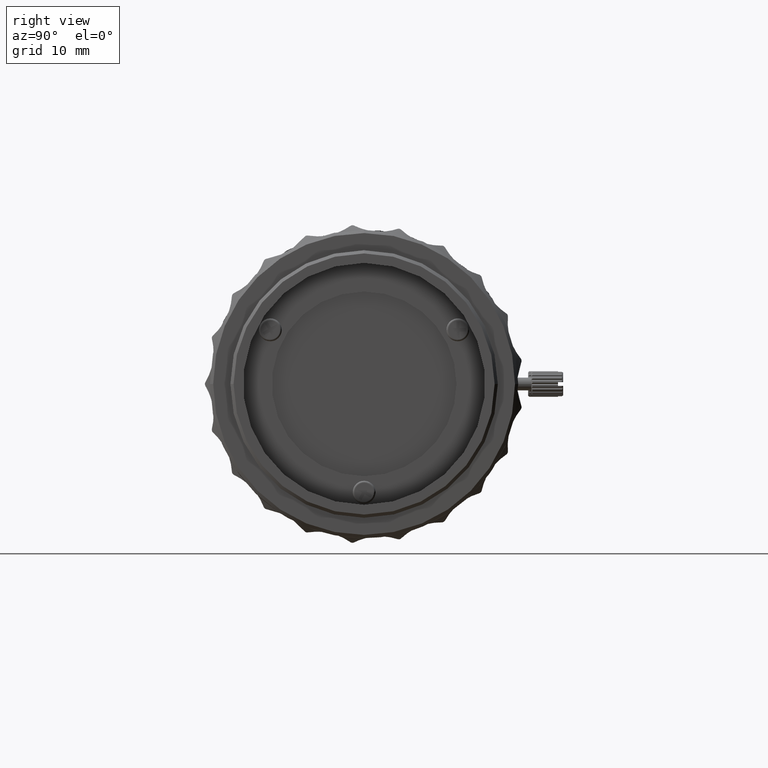
[diagram: clean part render]
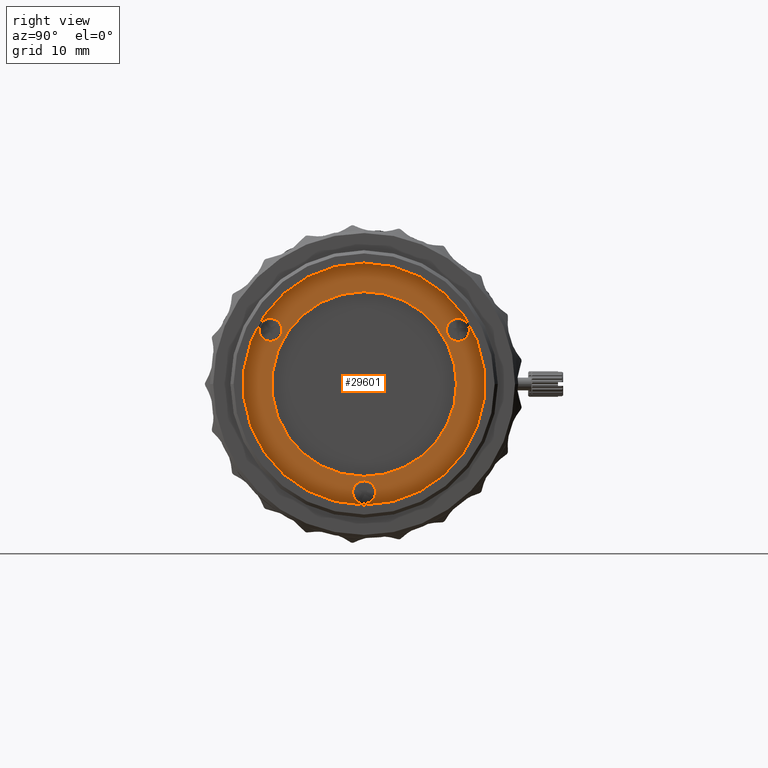
[diagram: same view with one face highlighted and labeled with its STEP entity id]
A machine part, right view. The second image highlights one B-rep face of the part: STEP entity #29601.
In plain terms, the highlighted planar face has unit normal (1, 0, 0).
Its self-contained STEP definition (entity closure, byte-faithful):
#645 = AXIS2_PLACEMENT_3D ( 'NONE', #67827, #20935, #40843 ) ;
#1491 = DIRECTION ( 'NONE',  ( 1.000000000000000000, 0.000000000000000000, 0.000000000000000000 ) ) ;
#2446 = VERTEX_POINT ( 'NONE', #39862 ) ;
#3119 = CIRCLE ( 'NONE', #5936, 1.799999999997940137 ) ;
#5640 = ORIENTED_EDGE ( 'NONE', *, *, #41194, .F. ) ;
#5758 = DIRECTION ( 'NONE',  ( 1.000000000000000000, 0.000000000000000000, 0.000000000000000000 ) ) ;
#5916 = EDGE_CURVE ( 'NONE', #37159, #42814, #18435, .T. ) ;
#5936 = AXIS2_PLACEMENT_3D ( 'NONE', #62930, #67788, #27519 ) ;
#6425 = ORIENTED_EDGE ( 'NONE', *, *, #31726, .F. ) ;
#6551 = CARTESIAN_POINT ( 'NONE',  ( 70.84600000000000364, 16.52243186433999966, 8.500000000000000000 ) ) ;
#7206 = FACE_BOUND ( 'NONE', #81527, .T. ) ;
#7243 = DIRECTION ( 'NONE',  ( 0.000000000000000000, -0.5000000000000167644, 0.8660254037844289376 ) ) ;
#9133 = EDGE_CURVE ( 'NONE', #2446, #22772, #37895, .T. ) ;
#9222 = VERTEX_POINT ( 'NONE', #6551 ) ;
#10450 = AXIS2_PLACEMENT_3D ( 'NONE', #87170, #5758, #26554 ) ;
#10662 = ORIENTED_EDGE ( 'NONE', *, *, #48024, .F. ) ;
#13706 = ORIENTED_EDGE ( 'NONE', *, *, #16368, .F. ) ;
#13896 = DIRECTION ( 'NONE',  ( 1.000000000000000000, 0.000000000000000000, 0.000000000000000000 ) ) ;
#14213 = VERTEX_POINT ( 'NONE', #33267 ) ;
#14341 = DIRECTION ( 'NONE',  ( 1.000000000000000000, 0.000000000000000000, 0.000000000000000000 ) ) ;
#14371 = CARTESIAN_POINT ( 'NONE',  ( 70.84600000000000364, 0.000000000000000000, 19.00000000000000000 ) ) ;
#14759 = CARTESIAN_POINT ( 'NONE',  ( 70.84600000000000364, 0.000000000000000000, 0.000000000000000000 ) ) ;
#15292 = DIRECTION ( 'NONE',  ( 0.000000000000000000, -1.000000000000000000, 0.000000000000000000 ) ) ;
#16368 = EDGE_CURVE ( 'NONE', #22772, #9222, #51496, .T. ) ;
#18435 = CIRCLE ( 'NONE', #48141, 1.799999999999939204 ) ;
#18628 = DIRECTION ( 'NONE',  ( 1.000000000000000000, 0.000000000000000000, 0.000000000000000000 ) ) ;
#19202 = ORIENTED_EDGE ( 'NONE', *, *, #50293, .F. ) ;
#19507 = DIRECTION ( 'NONE',  ( 1.000000000000000000, 0.000000000000000000, 0.000000000000000000 ) ) ;
#19648 = CARTESIAN_POINT ( 'NONE',  ( 70.84600000000000364, 0.000000000000000000, 0.000000000000000000 ) ) ;
#20935 = DIRECTION ( 'NONE',  ( 1.000000000000000000, 0.000000000000000000, 0.000000000000000000 ) ) ;
#22772 = VERTEX_POINT ( 'NONE', #38346 ) ;
#23639 = AXIS2_PLACEMENT_3D ( 'NONE', #70584, #69706, #30727 ) ;
#24595 = DIRECTION ( 'NONE',  ( 0.000000000000000000, -0.5000000000000169864, -0.8660254037844288266 ) ) ;
#25823 = DIRECTION ( 'NONE',  ( 0.000000000000000000, 0.000000000000000000, 1.000000000000000000 ) ) ;
#25898 = AXIS2_PLACEMENT_3D ( 'NONE', #75856, #1491, #28944 ) ;
#25926 = ORIENTED_EDGE ( 'NONE', *, *, #41093, .F. ) ;
#26016 = CARTESIAN_POINT ( 'NONE',  ( 70.84600000000000364, 14.72243186434000073, 8.500000000000000000 ) ) ;
#26554 = DIRECTION ( 'NONE',  ( 0.000000000000000000, 1.000000000000000000, 0.000000000000000000 ) ) ;
#27519 = DIRECTION ( 'NONE',  ( 0.000000000000000000, 0.5000000000000169864, 0.8660254037844288266 ) ) ;
#28944 = DIRECTION ( 'NONE',  ( 0.000000000000000000, 0.5000000000000158762, -0.8660254037844294928 ) ) ;
#28986 = CARTESIAN_POINT ( 'NONE',  ( 70.84600000000000364, 14.72243186434000073, 8.500000000000000000 ) ) ;
#29601 = ADVANCED_FACE ( 'NONE', ( #7206, #73173, #53680, #32433, #34192 ), #32871, .T. ) ;
#30573 = CARTESIAN_POINT ( 'NONE',  ( 70.84600000000000364, 0.000000000000000000, 0.000000000000000000 ) ) ;
#30727 = DIRECTION ( 'NONE',  ( 0.000000000000000000, 0.000000000000000000, -1.000000000000000000 ) ) ;
#31726 = EDGE_CURVE ( 'NONE', #61645, #52478, #80945, .T. ) ;
#32433 = FACE_BOUND ( 'NONE', #67717, .T. ) ;
#32871 = PLANE ( 'NONE',  #645 ) ;
#33267 = CARTESIAN_POINT ( 'NONE',  ( 70.84600000000000364, 14.50000000000000000, 9.331943547417400154E-32 ) ) ;
#33447 = ORIENTED_EDGE ( 'NONE', *, *, #78131, .F. ) ;
#33528 = CIRCLE ( 'NONE', #23639, 14.50000000000000000 ) ;
#34061 = AXIS2_PLACEMENT_3D ( 'NONE', #76377, #82128, #42319 ) ;
#34142 = CARTESIAN_POINT ( 'NONE',  ( 70.84600000000000364, 0.8999999999991999955, -15.44115427319000133 ) ) ;
#34192 = FACE_OUTER_BOUND ( 'NONE', #40081, .T. ) ;
#34227 = CARTESIAN_POINT ( 'NONE',  ( 70.84600000000000364, -14.72243186434000073, 8.500000000000000000 ) ) ;
#37159 = VERTEX_POINT ( 'NONE', #61851 ) ;
#37895 = CIRCLE ( 'NONE', #83133, 1.799999999999999600 ) ;
#38346 = CARTESIAN_POINT ( 'NONE',  ( 70.84600000000000364, 14.72243186434000073, 6.700000000000000178 ) ) ;
#38885 = VERTEX_POINT ( 'NONE', #71892 ) ;
#39840 = DIRECTION ( 'NONE',  ( 0.000000000000000000, -0.5000000000000169864, -0.8660254037844288266 ) ) ;
#39847 = EDGE_CURVE ( 'NONE', #14213, #61645, #58139, .T. ) ;
#39862 = CARTESIAN_POINT ( 'NONE',  ( 70.84600000000000364, 12.92243186434000002, 8.500000000000000000 ) ) ;
#40081 = EDGE_LOOP ( 'NONE', ( #5640, #19202 ) ) ;
#40172 = DIRECTION ( 'NONE',  ( 0.000000000000000000, -1.000000000000000000, 0.000000000000000000 ) ) ;
#40843 = DIRECTION ( 'NONE',  ( 0.000000000000000000, 1.000000000000000000, 0.000000000000000000 ) ) ;
#41093 = EDGE_CURVE ( 'NONE', #76872, #56397, #3119, .T. ) ;
#41194 = EDGE_CURVE ( 'NONE', #61007, #60341, #75189, .T. ) ;
#41915 = AXIS2_PLACEMENT_3D ( 'NONE', #73468, #19507, #39840 ) ;
#42319 = DIRECTION ( 'NONE',  ( 0.000000000000000000, 0.000000000000000000, -1.000000000000000000 ) ) ;
#42814 = VERTEX_POINT ( 'NONE', #71526 ) ;
#44632 = CARTESIAN_POINT ( 'NONE',  ( 70.84600000000000364, 0.000000000000000000, 14.50000000000000000 ) ) ;
#45244 = CARTESIAN_POINT ( 'NONE',  ( 70.84600000000000364, -0.8999999999991999955, -18.55884572681000222 ) ) ;
#46212 = CIRCLE ( 'NONE', #41915, 1.799999999997940137 ) ;
#48024 = EDGE_CURVE ( 'NONE', #38885, #76872, #46212, .T. ) ;
#48141 = AXIS2_PLACEMENT_3D ( 'NONE', #34227, #14341, #7243 ) ;
#49645 = DIRECTION ( 'NONE',  ( 0.000000000000000000, 0.000000000000000000, 1.000000000000000000 ) ) ;
#49960 = CIRCLE ( 'NONE', #25898, 1.799999999999938982 ) ;
#49998 = AXIS2_PLACEMENT_3D ( 'NONE', #59317, #18628, #73905 ) ;
#50147 = AXIS2_PLACEMENT_3D ( 'NONE', #28986, #75899, #15292 ) ;
#50293 = EDGE_CURVE ( 'NONE', #60341, #61007, #74619, .T. ) ;
#51272 = AXIS2_PLACEMENT_3D ( 'NONE', #19648, #13896, #25823 ) ;
#51496 = CIRCLE ( 'NONE', #50147, 1.799999999999999600 ) ;
#52101 = VERTEX_POINT ( 'NONE', #56479 ) ;
#52478 = VERTEX_POINT ( 'NONE', #82924 ) ;
#52596 = ORIENTED_EDGE ( 'NONE', *, *, #54448, .F. ) ;
#53680 = FACE_BOUND ( 'NONE', #74384, .T. ) ;
#54193 = CIRCLE ( 'NONE', #10450, 1.799999999999999600 ) ;
#54448 = EDGE_CURVE ( 'NONE', #52101, #37159, #49960, .T. ) ;
#56021 = ORIENTED_EDGE ( 'NONE', *, *, #69738, .F. ) ;
#56397 = VERTEX_POINT ( 'NONE', #45244 ) ;
#56479 = CARTESIAN_POINT ( 'NONE',  ( 70.84600000000000364, -13.82243186434000037, 6.941154273188000268 ) ) ;
#57383 = ORIENTED_EDGE ( 'NONE', *, *, #78142, .F. ) ;
#58139 = CIRCLE ( 'NONE', #34061, 14.50000000000000000 ) ;
#59317 = CARTESIAN_POINT ( 'NONE',  ( 70.84600000000000364, -14.72243186434000073, 8.500000000000000000 ) ) ;
#59978 = CIRCLE ( 'NONE', #82526, 1.799999999997940137 ) ;
#60341 = VERTEX_POINT ( 'NONE', #68990 ) ;
#60477 = AXIS2_PLACEMENT_3D ( 'NONE', #14759, #67838, #62092 ) ;
#60772 = ORIENTED_EDGE ( 'NONE', *, *, #5916, .F. ) ;
#61007 = VERTEX_POINT ( 'NONE', #14371 ) ;
#61645 = VERTEX_POINT ( 'NONE', #44632 ) ;
#61851 = CARTESIAN_POINT ( 'NONE',  ( 70.84600000000000364, -15.62243186433999931, 10.05884572681000044 ) ) ;
#62092 = DIRECTION ( 'NONE',  ( 0.000000000000000000, 0.000000000000000000, -1.000000000000000000 ) ) ;
#62930 = CARTESIAN_POINT ( 'NONE',  ( 70.84600000000000364, 0.000000000000000000, -17.00000000000000000 ) ) ;
#63819 = ORIENTED_EDGE ( 'NONE', *, *, #9133, .F. ) ;
#65893 = DIRECTION ( 'NONE',  ( 1.000000000000000000, 0.000000000000000000, 0.000000000000000000 ) ) ;
#67632 = ORIENTED_EDGE ( 'NONE', *, *, #84828, .F. ) ;
#67717 = EDGE_LOOP ( 'NONE', ( #52596, #57383, #60772 ) ) ;
#67788 = DIRECTION ( 'NONE',  ( 1.000000000000000000, 0.000000000000000000, 0.000000000000000000 ) ) ;
#67827 = CARTESIAN_POINT ( 'NONE',  ( 70.84600000000000364, -19.75998930456999858, 19.75999999999999801 ) ) ;
#67838 = DIRECTION ( 'NONE',  ( -1.000000000000000000, 0.000000000000000000, 0.000000000000000000 ) ) ;
#68990 = CARTESIAN_POINT ( 'NONE',  ( 70.84600000000000364, 0.000000000000000000, -19.00000000000000000 ) ) ;
#69706 = DIRECTION ( 'NONE',  ( 1.000000000000000000, 0.000000000000000000, 0.000000000000000000 ) ) ;
#69738 = EDGE_CURVE ( 'NONE', #56397, #38885, #59978, .T. ) ;
#70584 = CARTESIAN_POINT ( 'NONE',  ( 70.84600000000000364, 0.000000000000000000, 0.000000000000000000 ) ) ;
#71188 = CIRCLE ( 'NONE', #49998, 1.799999999999939204 ) ;
#71526 = CARTESIAN_POINT ( 'NONE',  ( 70.84600000000000364, -14.72243186433970052, 6.700000000000000178 ) ) ;
#71892 = CARTESIAN_POINT ( 'NONE',  ( 70.84600000000000364, 1.799999999997939915, -17.00000000000000000 ) ) ;
#73173 = FACE_BOUND ( 'NONE', #84793, .T. ) ;
#73463 = ORIENTED_EDGE ( 'NONE', *, *, #39847, .F. ) ;
#73468 = CARTESIAN_POINT ( 'NONE',  ( 70.84600000000000364, 0.000000000000000000, -17.00000000000000000 ) ) ;
#73905 = DIRECTION ( 'NONE',  ( 0.000000000000000000, -0.5000000000000167644, 0.8660254037844289376 ) ) ;
#74384 = EDGE_LOOP ( 'NONE', ( #25926, #10662, #56021 ) ) ;
#74619 = CIRCLE ( 'NONE', #60477, 19.00000000000000000 ) ;
#75189 = CIRCLE ( 'NONE', #82257, 19.00000000000000000 ) ;
#75856 = CARTESIAN_POINT ( 'NONE',  ( 70.84600000000000364, -14.72243186434000073, 8.500000000000000000 ) ) ;
#75899 = DIRECTION ( 'NONE',  ( 1.000000000000000000, 0.000000000000000000, 0.000000000000000000 ) ) ;
#76377 = CARTESIAN_POINT ( 'NONE',  ( 70.84600000000000364, 0.000000000000000000, 0.000000000000000000 ) ) ;
#76872 = VERTEX_POINT ( 'NONE', #34142 ) ;
#77071 = DIRECTION ( 'NONE',  ( -1.000000000000000000, 0.000000000000000000, 0.000000000000000000 ) ) ;
#77297 = DIRECTION ( 'NONE',  ( 1.000000000000000000, 0.000000000000000000, 0.000000000000000000 ) ) ;
#78131 = EDGE_CURVE ( 'NONE', #9222, #2446, #54193, .T. ) ;
#78142 = EDGE_CURVE ( 'NONE', #42814, #52101, #71188, .T. ) ;
#80945 = CIRCLE ( 'NONE', #51272, 14.50000000000000000 ) ;
#81527 = EDGE_LOOP ( 'NONE', ( #67632, #6425, #73463 ) ) ;
#82128 = DIRECTION ( 'NONE',  ( 1.000000000000000000, 0.000000000000000000, 0.000000000000000000 ) ) ;
#82257 = AXIS2_PLACEMENT_3D ( 'NONE', #30573, #77071, #49645 ) ;
#82526 = AXIS2_PLACEMENT_3D ( 'NONE', #83899, #77297, #24595 ) ;
#82924 = CARTESIAN_POINT ( 'NONE',  ( 70.84600000000000364, 0.000000000000000000, -14.50000000000000000 ) ) ;
#83133 = AXIS2_PLACEMENT_3D ( 'NONE', #26016, #65893, #40172 ) ;
#83899 = CARTESIAN_POINT ( 'NONE',  ( 70.84600000000000364, 0.000000000000000000, -17.00000000000000000 ) ) ;
#84793 = EDGE_LOOP ( 'NONE', ( #63819, #33447, #13706 ) ) ;
#84828 = EDGE_CURVE ( 'NONE', #52478, #14213, #33528, .T. ) ;
#87170 = CARTESIAN_POINT ( 'NONE',  ( 70.84600000000000364, 14.72243186434000073, 8.500000000000000000 ) ) ;